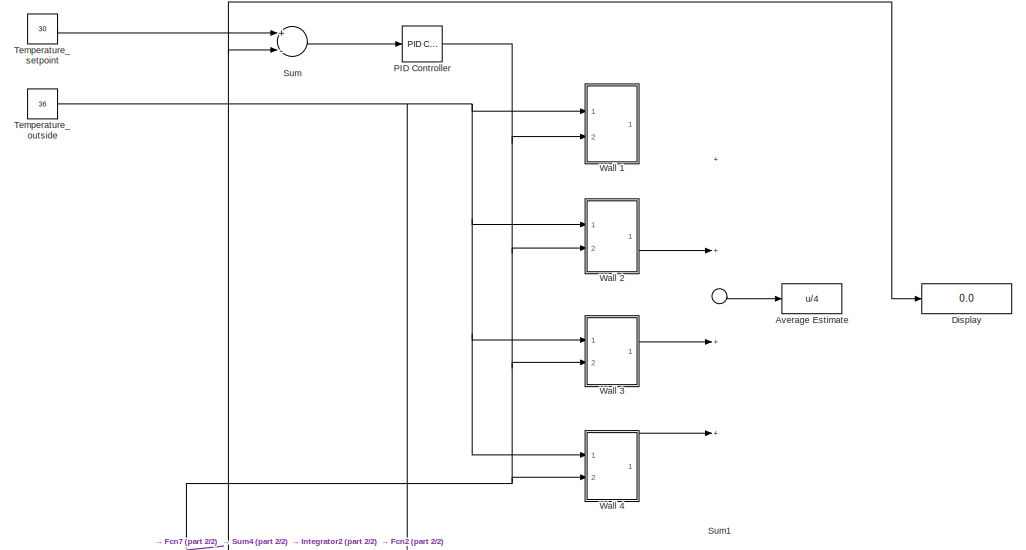
[diagram: root canvas - part 1/2, full width, top band]
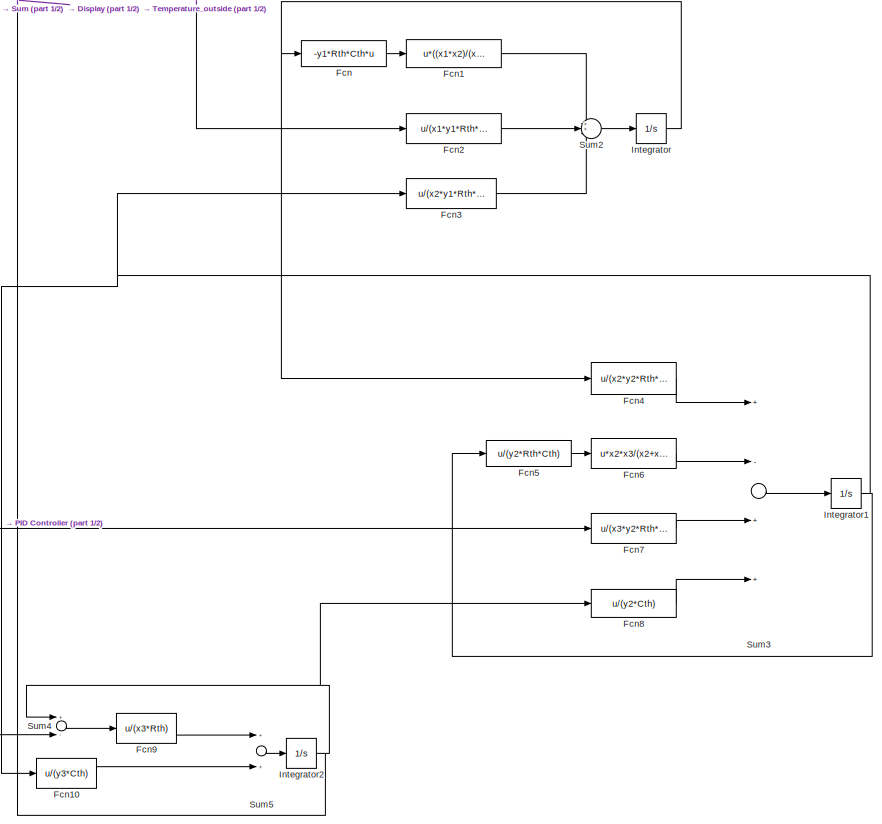
[diagram: root canvas - part 2/2, full width, bottom band]
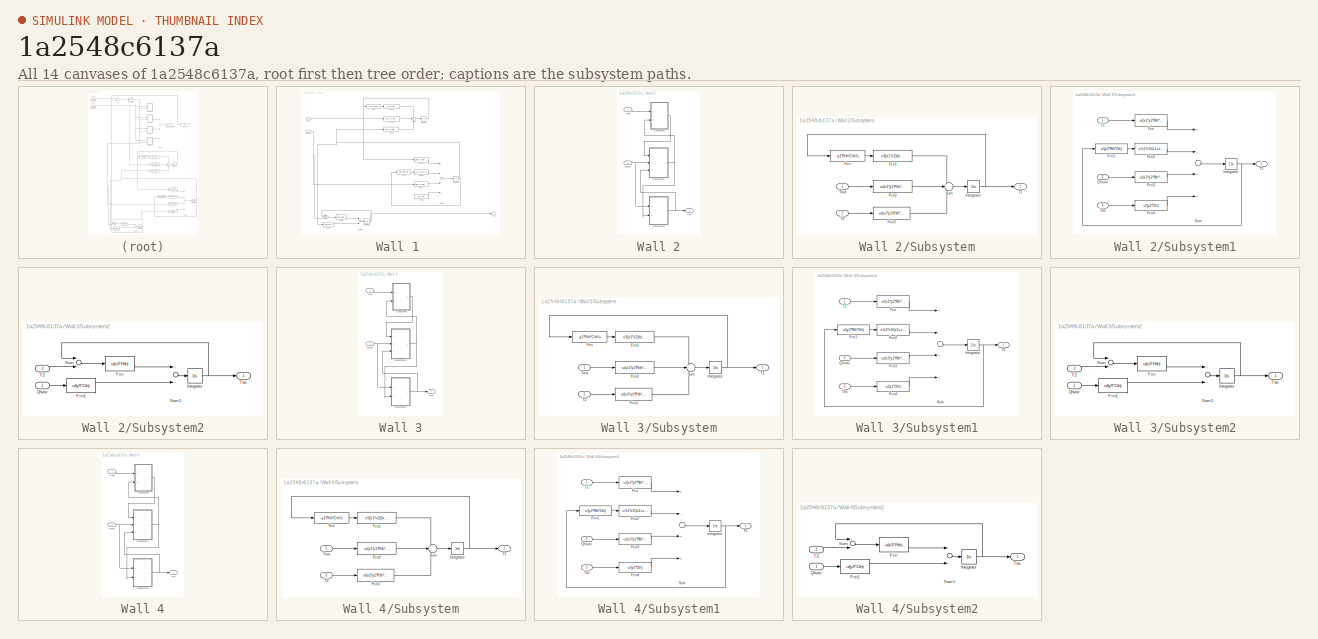
[diagram: thumbnail index - all 14 canvases of the model, root first then tree order]
MODEL slx_1a2548c6137a
KIND model
CONFIG AbsTol = auto
CONFIG FixedStep = auto
CONFIG InitFcn = server = Sim_server(10000);
CONFIG MaxStep = auto
CONFIG MinStep = auto
CONFIG RelTol = 1e-3
CONFIG SampleTimeConstraint = Unconstrained
CONFIG Solver = ode45
CONFIG SolverMode = Auto
CONFIG SolverName = ode45
CONFIG StartTime = 0.0
CONFIG StopFcn = server.stop
CONFIG StopTime = Inf
BLOCK [Fcn] Average Estimate
  Commented = on
  Expr = u/4
BLOCK [Display] Display
  Decimation = 1
  Ports = [1]
BLOCK [Fcn] Fcn
  Expr = -y1*Rth*Cth*u
BLOCK [Fcn] Fcn1
  Expr = u*((x1*x2)/(x1+x2))
BLOCK [Fcn] Fcn10
  Expr = u/(y3*Cth)
BLOCK [Fcn] Fcn2
  Expr = u/(x1*y1*Rth*Cth)
BLOCK [Fcn] Fcn3
  Expr = u/(x2*y1*Rth*Cth)
BLOCK [Fcn] Fcn4
  Expr = u/(x2*y2*Rth*Cth)
BLOCK [Fcn] Fcn5
  Expr = u/(y2*Rth*Cth)
BLOCK [Fcn] Fcn6
  Expr = u*x2*x3/(x2+x3)
BLOCK [Fcn] Fcn7
  Expr = u/(x3*y2*Rth*Cth)
BLOCK [Fcn] Fcn8
  Expr = u/(y2*Cth)
BLOCK [Fcn] Fcn9
  Expr = u/(x3*Rth)
BLOCK [Integrator] Integrator
  Ports = [1, 1]
BLOCK [Integrator] Integrator1
  Ports = [1, 1]
BLOCK [Integrator] Integrator2
  Ports = [1, 1]
BLOCK [Reference] PID Controller  REF=simulink/Continuous/PID Controller
  AntiWindupMode = none
  Controller = PID
  ControllerParametersSource = internal
  D = -0.161133654003053
  DGainOutDataTypeStr = Inherit: Inherit via internal rule
  DOutDataTypeStr = Inherit: Inherit via internal rule
  DOutMax = []
  DOutMin = []
  DParamDataTypeStr = Inherit: Inherit via internal rule
  DParamMax = []
  DParamMin = []
  DProdOutDataTypeStr = Inherit: Inherit via internal rule
  DifferentiatorICPrevScaledInput = 0
  DifferentiatorOutDataTypeStr = Inherit: Inherit via internal rule
  DifferentiatorOutMax = []
  DifferentiatorOutMin = []
  ExternalReset = none
  FilterContinuousStateAttributes = ''
  FilterMethod = Forward Euler
  FilterOutDataTypeStr = Inherit: Inherit via internal rule
  FilterOutMax = []
  FilterOutMin = []
  FilterRTWStateStorageClass = Auto
  FilterStateMustResolveToSignalObject = off
  Form = Parallel
  I = -345.034799736216
  IGainOutDataTypeStr = Inherit: Inherit via internal rule
  IOutDataTypeStr = Inherit: Inherit via internal rule
  IOutMax = []
  IOutMin = []
  IParamDataTypeStr = Inherit: Inherit via internal rule
  IParamMax = []
  IParamMin = []
  IProdOutDataTypeStr = Inherit: Inherit via internal rule
  IgnoreLimit = off
  InitialConditionForFilter = 0
  InitialConditionForIntegrator = 0
  InitialConditionSource = internal
  IntegratorContinuousStateAttributes = ''
  IntegratorMethod = Forward Euler
  IntegratorOutDataTypeStr = Inherit: Inherit via internal rule
  IntegratorOutMax = []
  IntegratorOutMin = []
  IntegratorRTWStateStorageClass = Auto
  IntegratorStateMustResolveToSignalObject = off
  Kb = 1
  KbOutDataTypeStr = Inherit: Inherit via internal rule
  KbOutMax = []
  KbOutMin = []
  KbParamDataTypeStr = Inherit: Inherit via internal rule
  KbParamMax = []
  KbParamMin = []
  Kt = 1
  KtOutDataTypeStr = Inherit: Inherit via internal rule
  KtOutMax = []
  KtOutMin = []
  KtParamDataTypeStr = Inherit: Inherit via internal rule
  KtParamMax = []
  KtParamMin = []
  LimitOutput = off
  LinearizeAsGain = on
  LockScale = off
  LowerSaturationLimit = -inf
  N = 216.924955724861
  NGainOutDataTypeStr = Inherit: Inherit via internal rule
  NOutDataTypeStr = Inherit: Inherit via internal rule
  NOutMax = []
  NOutMin = []
  NParamDataTypeStr = Inherit: Inherit via internal rule
  NParamMax = []
  NParamMin = []
  NProdOutDataTypeStr = Inherit: Inherit via internal rule
  P = -48.5287946828106
  PGainOutDataTypeStr = Inherit: Inherit via internal rule
  POutDataTypeStr = Inherit: Inherit via internal rule
  POutMax = []
  POutMin = []
  PParamDataTypeStr = Inherit: Inherit via internal rule
  PParamMax = []
  PParamMin = []
  PProdOutDataTypeStr = Inherit: Inherit via internal rule
  Ports = [1, 1]
  RndMeth = Floor
  SampleTime = -1
  SaturateOnIntegerOverflow = off
  SaturationOutDataTypeStr = Inherit: Same as input
  SaturationOutMax = []
  SaturationOutMin = []
  SourceBlock = simulink/Continuous/PID Controller
  SourceType = PID 1dof
  SumAccumDataTypeStr = Inherit: Inherit via internal rule
  SumDAccumDataTypeStr = Inherit: Inherit via internal rule
  SumDOutDataTypeStr = Inherit: Inherit via internal rule
  SumDOutMax = []
  SumDOutMin = []
  SumI1AccumDataTypeStr = Inherit: Inherit via internal rule
  SumI1OutDataTypeStr = Inherit: Inherit via internal rule
  SumI1OutMax = []
  SumI1OutMin = []
  SumI2AccumDataTypeStr = Inherit: Inherit via internal rule
  SumI2OutDataTypeStr = Inherit: Inherit via internal rule
  SumI2OutMax = []
  SumI2OutMin = []
  SumI3AccumDataTypeStr = Inherit: Inherit via internal rule
  SumI3OutDataTypeStr = Inherit: Inherit via internal rule
  SumI3OutMax = []
  SumI3OutMin = []
  SumOutDataTypeStr = Inherit: Inherit via internal rule
  SumOutMax = []
  SumOutMin = []
  TimeDomain = Continuous-time
  TrackingMode = off
  UpperSaturationLimit = inf
  UseFilter = on
  ZeroCross = on
BLOCK [Sum] Sum
  InputSameDT = off
  Inputs = +-
  OutDataTypeStr = Inherit: Inherit via internal rule
  Ports = [2, 1]
  SaturateOnIntegerOverflow = off
BLOCK [Sum] Sum1
  Commented = on
  InputSameDT = off
  Inputs = ++++
  OutDataTypeStr = Inherit: Inherit via internal rule
  Ports = [4, 1]
  SaturateOnIntegerOverflow = off
BLOCK [Sum] Sum2
  IconShape = round
  InputSameDT = off
  Inputs = 3
  OutDataTypeStr = Inherit: Inherit via internal rule
  Ports = [3, 1]
  SaturateOnIntegerOverflow = off
BLOCK [Sum] Sum3
  InputSameDT = off
  Inputs = +-++
  OutDataTypeStr = Inherit: Inherit via internal rule
  Ports = [4, 1]
  RndMeth = Round
  SaturateOnIntegerOverflow = off
BLOCK [Sum] Sum4
  InputSameDT = off
  Inputs = +-
  OutDataTypeStr = Inherit: Inherit via internal rule
  Ports = [2, 1]
  SaturateOnIntegerOverflow = off
BLOCK [Sum] Sum5
  InputSameDT = off
  OutDataTypeStr = Inherit: Inherit via internal rule
  Ports = [2, 1]
  SaturateOnIntegerOverflow = off
BLOCK [Constant] Temperature_outside
  Value = 36
BLOCK [Constant] Temperature_setpoint
  OutMax = [30]
  OutMin = [16]
  Value = 30
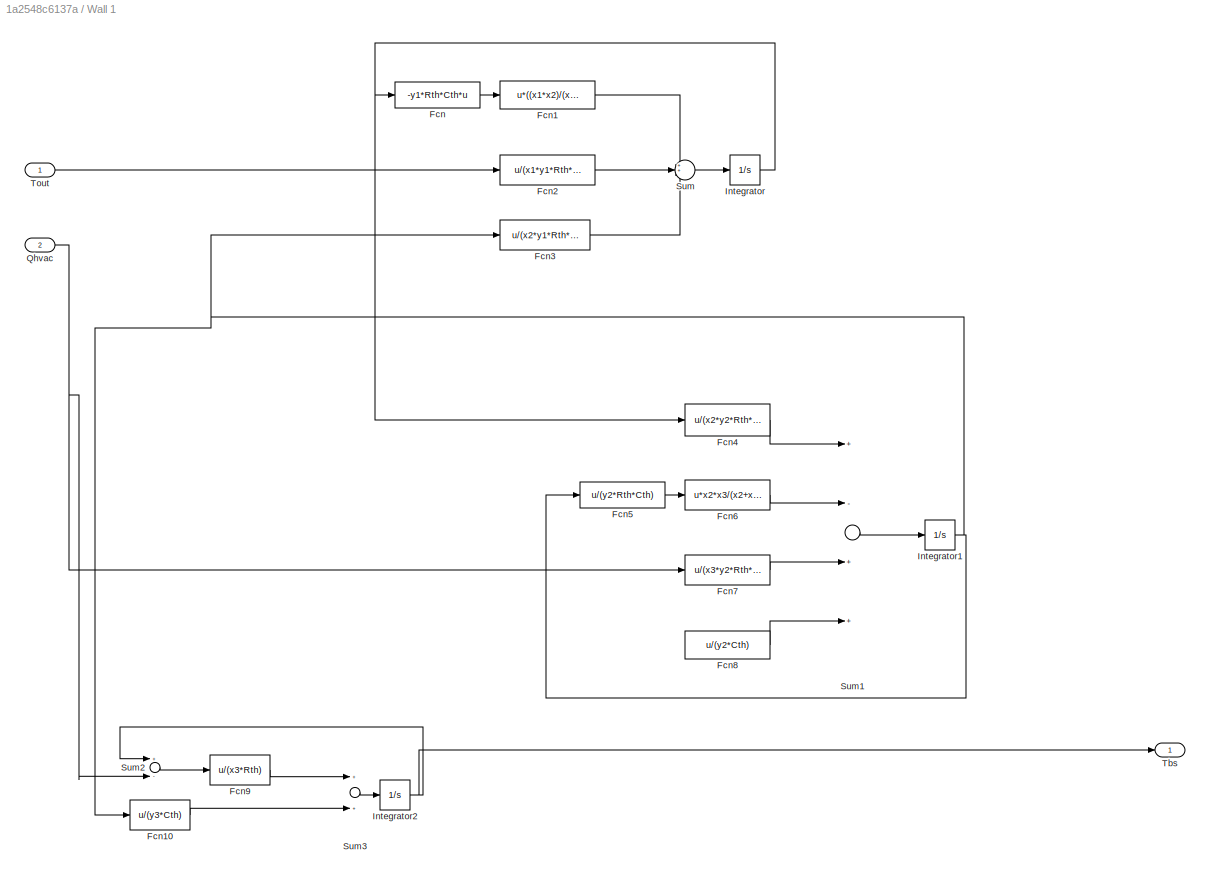
BLOCK [SubSystem] Wall 1 
  Commented = on
  Ports = [2, 1]
  RequestExecContextInheritance = off
  Variant = off
BLOCK [Fcn] Wall 1 /Fcn
  Expr = -y1*Rth*Cth*u
BLOCK [Fcn] Wall 1 /Fcn1
  Expr = u*((x1*x2)/(x1+x2))
BLOCK [Fcn] Wall 1 /Fcn10
  Expr = u/(y3*Cth)
BLOCK [Fcn] Wall 1 /Fcn2
  Expr = u/(x1*y1*Rth*Cth)
BLOCK [Fcn] Wall 1 /Fcn3
  Expr = u/(x2*y1*Rth*Cth)
BLOCK [Fcn] Wall 1 /Fcn4
  Expr = u/(x2*y2*Rth*Cth)
BLOCK [Fcn] Wall 1 /Fcn5
  Expr = u/(y2*Rth*Cth)
BLOCK [Fcn] Wall 1 /Fcn6
  Expr = u*x2*x3/(x2+x3)
BLOCK [Fcn] Wall 1 /Fcn7
  Expr = u/(x3*y2*Rth*Cth)
BLOCK [Fcn] Wall 1 /Fcn8
  Expr = u/(y2*Cth)
BLOCK [Fcn] Wall 1 /Fcn9
  Expr = u/(x3*Rth)
BLOCK [Integrator] Wall 1 /Integrator
  Ports = [1, 1]
BLOCK [Integrator] Wall 1 /Integrator1
  Ports = [1, 1]
BLOCK [Integrator] Wall 1 /Integrator2
  Ports = [1, 1]
BLOCK [Inport] Wall 1 /Qhvac
  IconDisplay = Port number
  Port = 2
BLOCK [Sum] Wall 1 /Sum
  IconShape = round
  InputSameDT = off
  Inputs = 3
  OutDataTypeStr = Inherit: Inherit via internal rule
  Ports = [3, 1]
  SaturateOnIntegerOverflow = off
BLOCK [Sum] Wall 1 /Sum1
  InputSameDT = off
  Inputs = +-++
  OutDataTypeStr = Inherit: Inherit via internal rule
  Ports = [4, 1]
  RndMeth = Round
  SaturateOnIntegerOverflow = off
BLOCK [Sum] Wall 1 /Sum2
  InputSameDT = off
  Inputs = +-
  OutDataTypeStr = Inherit: Inherit via internal rule
  Ports = [2, 1]
  SaturateOnIntegerOverflow = off
BLOCK [Sum] Wall 1 /Sum3
  InputSameDT = off
  OutDataTypeStr = Inherit: Inherit via internal rule
  Ports = [2, 1]
  SaturateOnIntegerOverflow = off
BLOCK [Outport] Wall 1 /Tbs 
  IconDisplay = Port number
BLOCK [Inport] Wall 1 /Tout
  IconDisplay = Port number
BLOCK [SubSystem] Wall 2
  Commented = on
  Ports = [2, 1]
  RequestExecContextInheritance = off
  Variant = off
BLOCK [Inport] Wall 2/Qhvac
  IconDisplay = Port number
  Port = 2
BLOCK [SubSystem] Wall 2/Subsystem
  Ports = [2, 1]
  RequestExecContextInheritance = off
  Variant = off
BLOCK [Fcn] Wall 2/Subsystem/Fcn
  Expr = -y1*Rth*Cth*u
BLOCK [Fcn] Wall 2/Subsystem/Fcn1
  Expr = u*((x1*x2)/(x1+x2))
BLOCK [Fcn] Wall 2/Subsystem/Fcn2
  Expr = u/(x1*y1*Rth*Cth)
BLOCK [Fcn] Wall 2/Subsystem/Fcn3
  Expr = u/(x2*y1*Rth*Cth)
BLOCK [Integrator] Wall 2/Subsystem/Integrator
  Ports = [1, 1]
BLOCK [Sum] Wall 2/Subsystem/Sum
  IconShape = round
  InputSameDT = off
  Inputs = 3
  OutDataTypeStr = Inherit: Inherit via internal rule
  Ports = [3, 1]
  SaturateOnIntegerOverflow = off
BLOCK [Outport] Wall 2/Subsystem/T1
  IconDisplay = Port number
BLOCK [Inport] Wall 2/Subsystem/T2
  IconDisplay = Port number
  Port = 2
BLOCK [Inport] Wall 2/Subsystem/Tout
  IconDisplay = Port number
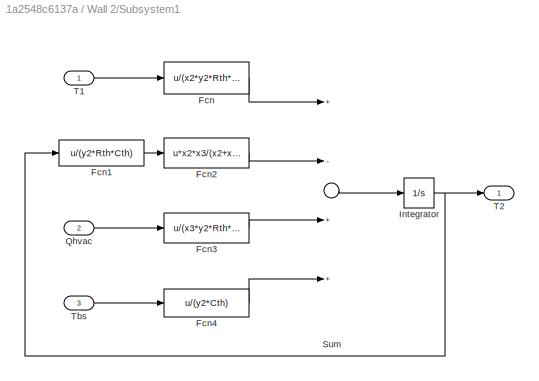
BLOCK [SubSystem] Wall 2/Subsystem1
  Ports = [3, 1]
  RequestExecContextInheritance = off
  Variant = off
BLOCK [Fcn] Wall 2/Subsystem1/Fcn
  Expr = u/(x2*y2*Rth*Cth)
BLOCK [Fcn] Wall 2/Subsystem1/Fcn1
  Expr = u/(y2*Rth*Cth)
BLOCK [Fcn] Wall 2/Subsystem1/Fcn2
  Expr = u*x2*x3/(x2+x3)
BLOCK [Fcn] Wall 2/Subsystem1/Fcn3
  Expr = u/(x3*y2*Rth*Cth)
BLOCK [Fcn] Wall 2/Subsystem1/Fcn4
  Expr = u/(y2*Cth)
BLOCK [Integrator] Wall 2/Subsystem1/Integrator
  Ports = [1, 1]
BLOCK [Inport] Wall 2/Subsystem1/Qhvac
  IconDisplay = Port number
  Port = 2
BLOCK [Sum] Wall 2/Subsystem1/Sum
  InputSameDT = off
  Inputs = +-++
  OutDataTypeStr = Inherit: Inherit via internal rule
  Ports = [4, 1]
  RndMeth = Round
  SaturateOnIntegerOverflow = off
BLOCK [Inport] Wall 2/Subsystem1/T1 
  IconDisplay = Port number
BLOCK [Outport] Wall 2/Subsystem1/T2 
  IconDisplay = Port number
BLOCK [Inport] Wall 2/Subsystem1/Tbs
  IconDisplay = Port number
  Port = 3
BLOCK [SubSystem] Wall 2/Subsystem2
  Ports = [2, 1]
  RequestExecContextInheritance = off
  Variant = off
BLOCK [Fcn] Wall 2/Subsystem2/Fcn
  Expr = u/(x3*Rth)
BLOCK [Fcn] Wall 2/Subsystem2/Fcn1
  Expr = u/(y3*Cth)
BLOCK [Integrator] Wall 2/Subsystem2/Integrator
  Ports = [1, 1]
BLOCK [Inport] Wall 2/Subsystem2/Qhvac 
  IconDisplay = Port number
BLOCK [Sum] Wall 2/Subsystem2/Sum
  InputSameDT = off
  Inputs = +-
  OutDataTypeStr = Inherit: Inherit via internal rule
  Ports = [2, 1]
  SaturateOnIntegerOverflow = off
BLOCK [Sum] Wall 2/Subsystem2/Sum1
  InputSameDT = off
  OutDataTypeStr = Inherit: Inherit via internal rule
  Ports = [2, 1]
  SaturateOnIntegerOverflow = off
BLOCK [Inport] Wall 2/Subsystem2/T2 
  IconDisplay = Port number
  Port = 2
BLOCK [Outport] Wall 2/Subsystem2/Tbs 
  IconDisplay = Port number
BLOCK [Outport] Wall 2/Tbs 
  IconDisplay = Port number
BLOCK [Inport] Wall 2/Tout
  IconDisplay = Port number
BLOCK [SubSystem] Wall 3
  Commented = on
  Ports = [2, 1]
  RequestExecContextInheritance = off
  Variant = off
BLOCK [Inport] Wall 3/Qhvac
  IconDisplay = Port number
  Port = 2
BLOCK [SubSystem] Wall 3/Subsystem
  Ports = [2, 1]
  RequestExecContextInheritance = off
  Variant = off
BLOCK [Fcn] Wall 3/Subsystem/Fcn
  Expr = -y1*Rth*Cth*u
BLOCK [Fcn] Wall 3/Subsystem/Fcn1
  Expr = u*((x1*x2)/(x1+x2))
BLOCK [Fcn] Wall 3/Subsystem/Fcn2
  Expr = u/(x1*y1*Rth*Cth)
BLOCK [Fcn] Wall 3/Subsystem/Fcn3
  Expr = u/(x2*y1*Rth*Cth)
BLOCK [Integrator] Wall 3/Subsystem/Integrator
  Ports = [1, 1]
BLOCK [Sum] Wall 3/Subsystem/Sum
  IconShape = round
  InputSameDT = off
  Inputs = 3
  OutDataTypeStr = Inherit: Inherit via internal rule
  Ports = [3, 1]
  SaturateOnIntegerOverflow = off
BLOCK [Outport] Wall 3/Subsystem/T1
  IconDisplay = Port number
BLOCK [Inport] Wall 3/Subsystem/T2
  IconDisplay = Port number
  Port = 2
BLOCK [Inport] Wall 3/Subsystem/Tout
  IconDisplay = Port number
BLOCK [SubSystem] Wall 3/Subsystem1
  Ports = [3, 1]
  RequestExecContextInheritance = off
  Variant = off
BLOCK [Fcn] Wall 3/Subsystem1/Fcn
  Expr = u/(x2*y2*Rth*Cth)
BLOCK [Fcn] Wall 3/Subsystem1/Fcn1
  Expr = u/(y2*Rth*Cth)
BLOCK [Fcn] Wall 3/Subsystem1/Fcn2
  Expr = u*x2*x3/(x2+x3)
BLOCK [Fcn] Wall 3/Subsystem1/Fcn3
  Expr = u/(x3*y2*Rth*Cth)
BLOCK [Fcn] Wall 3/Subsystem1/Fcn4
  Expr = u/(y2*Cth)
BLOCK [Integrator] Wall 3/Subsystem1/Integrator
  Ports = [1, 1]
BLOCK [Inport] Wall 3/Subsystem1/Qhvac
  IconDisplay = Port number
  Port = 2
BLOCK [Sum] Wall 3/Subsystem1/Sum
  InputSameDT = off
  Inputs = +-++
  OutDataTypeStr = Inherit: Inherit via internal rule
  Ports = [4, 1]
  RndMeth = Round
  SaturateOnIntegerOverflow = off
BLOCK [Inport] Wall 3/Subsystem1/T1 
  IconDisplay = Port number
BLOCK [Outport] Wall 3/Subsystem1/T2 
  IconDisplay = Port number
BLOCK [Inport] Wall 3/Subsystem1/Tbs
  IconDisplay = Port number
  Port = 3
BLOCK [SubSystem] Wall 3/Subsystem2
  Ports = [2, 1]
  RequestExecContextInheritance = off
  Variant = off
BLOCK [Fcn] Wall 3/Subsystem2/Fcn
  Expr = u/(x3*Rth)
BLOCK [Fcn] Wall 3/Subsystem2/Fcn1
  Expr = u/(y3*Cth)
BLOCK [Integrator] Wall 3/Subsystem2/Integrator
  Ports = [1, 1]
BLOCK [Inport] Wall 3/Subsystem2/Qhvac 
  IconDisplay = Port number
BLOCK [Sum] Wall 3/Subsystem2/Sum
  InputSameDT = off
  Inputs = +-
  OutDataTypeStr = Inherit: Inherit via internal rule
  Ports = [2, 1]
  SaturateOnIntegerOverflow = off
BLOCK [Sum] Wall 3/Subsystem2/Sum1
  InputSameDT = off
  OutDataTypeStr = Inherit: Inherit via internal rule
  Ports = [2, 1]
  SaturateOnIntegerOverflow = off
BLOCK [Inport] Wall 3/Subsystem2/T2 
  IconDisplay = Port number
  Port = 2
BLOCK [Outport] Wall 3/Subsystem2/Tbs 
  IconDisplay = Port number
BLOCK [Outport] Wall 3/Tbs 
  IconDisplay = Port number
BLOCK [Inport] Wall 3/Tout
  IconDisplay = Port number
BLOCK [SubSystem] Wall 4
  Commented = on
  Ports = [2, 1]
  RequestExecContextInheritance = off
  Variant = off
BLOCK [Inport] Wall 4/Qhvac
  IconDisplay = Port number
  Port = 2
BLOCK [SubSystem] Wall 4/Subsystem
  Ports = [2, 1]
  RequestExecContextInheritance = off
  Variant = off
BLOCK [Fcn] Wall 4/Subsystem/Fcn
  Expr = -y1*Rth*Cth*u
BLOCK [Fcn] Wall 4/Subsystem/Fcn1
  Expr = u*((x1*x2)/(x1+x2))
BLOCK [Fcn] Wall 4/Subsystem/Fcn2
  Expr = u/(x1*y1*Rth*Cth)
BLOCK [Fcn] Wall 4/Subsystem/Fcn3
  Expr = u/(x2*y1*Rth*Cth)
BLOCK [Integrator] Wall 4/Subsystem/Integrator
  Ports = [1, 1]
BLOCK [Sum] Wall 4/Subsystem/Sum
  IconShape = round
  InputSameDT = off
  Inputs = 3
  OutDataTypeStr = Inherit: Inherit via internal rule
  Ports = [3, 1]
  SaturateOnIntegerOverflow = off
BLOCK [Outport] Wall 4/Subsystem/T1
  IconDisplay = Port number
BLOCK [Inport] Wall 4/Subsystem/T2
  IconDisplay = Port number
  Port = 2
BLOCK [Inport] Wall 4/Subsystem/Tout
  IconDisplay = Port number
BLOCK [SubSystem] Wall 4/Subsystem1
  Ports = [3, 1]
  RequestExecContextInheritance = off
  Variant = off
BLOCK [Fcn] Wall 4/Subsystem1/Fcn
  Expr = u/(x2*y2*Rth*Cth)
BLOCK [Fcn] Wall 4/Subsystem1/Fcn1
  Expr = u/(y2*Rth*Cth)
BLOCK [Fcn] Wall 4/Subsystem1/Fcn2
  Expr = u*x2*x3/(x2+x3)
BLOCK [Fcn] Wall 4/Subsystem1/Fcn3
  Expr = u/(x3*y2*Rth*Cth)
BLOCK [Fcn] Wall 4/Subsystem1/Fcn4
  Expr = u/(y2*Cth)
BLOCK [Integrator] Wall 4/Subsystem1/Integrator
  Ports = [1, 1]
BLOCK [Inport] Wall 4/Subsystem1/Qhvac
  IconDisplay = Port number
  Port = 2
BLOCK [Sum] Wall 4/Subsystem1/Sum
  InputSameDT = off
  Inputs = +-++
  OutDataTypeStr = Inherit: Inherit via internal rule
  Ports = [4, 1]
  RndMeth = Round
  SaturateOnIntegerOverflow = off
BLOCK [Inport] Wall 4/Subsystem1/T1 
  IconDisplay = Port number
BLOCK [Outport] Wall 4/Subsystem1/T2 
  IconDisplay = Port number
BLOCK [Inport] Wall 4/Subsystem1/Tbs
  IconDisplay = Port number
  Port = 3
BLOCK [SubSystem] Wall 4/Subsystem2
  Ports = [2, 1]
  RequestExecContextInheritance = off
  Variant = off
BLOCK [Fcn] Wall 4/Subsystem2/Fcn
  Expr = u/(x3*Rth)
BLOCK [Fcn] Wall 4/Subsystem2/Fcn1
  Expr = u/(y3*Cth)
BLOCK [Integrator] Wall 4/Subsystem2/Integrator
  Ports = [1, 1]
BLOCK [Inport] Wall 4/Subsystem2/Qhvac 
  IconDisplay = Port number
BLOCK [Sum] Wall 4/Subsystem2/Sum
  InputSameDT = off
  Inputs = +-
  OutDataTypeStr = Inherit: Inherit via internal rule
  Ports = [2, 1]
  SaturateOnIntegerOverflow = off
BLOCK [Sum] Wall 4/Subsystem2/Sum1
  InputSameDT = off
  OutDataTypeStr = Inherit: Inherit via internal rule
  Ports = [2, 1]
  SaturateOnIntegerOverflow = off
BLOCK [Inport] Wall 4/Subsystem2/T2 
  IconDisplay = Port number
  Port = 2
BLOCK [Outport] Wall 4/Subsystem2/Tbs 
  IconDisplay = Port number
BLOCK [Outport] Wall 4/Tbs 
  IconDisplay = Port number
BLOCK [Inport] Wall 4/Tout
  IconDisplay = Port number
LINE Fcn10:1 -> Sum5:2
LINE Fcn1:1 -> Sum2:1
LINE Fcn2:1 -> Sum2:2
LINE Fcn3:1 -> Sum2:3
LINE Fcn4:1 -> Sum3:1
LINE Fcn5:1 -> Fcn6:1
LINE Fcn6:1 -> Sum3:2
LINE Fcn7:1 -> Sum3:3
LINE Fcn8:1 -> Sum3:4
LINE Fcn9:1 -> Sum5:1
LINE Fcn:1 -> Fcn1:1
NET Integrator1:1 -> Fcn10:1, Fcn3:1, Fcn5:1
NET Integrator2:1 -> Display:1, Fcn8:1, Sum4:1, Sum:2
NET Integrator:1 -> Fcn4:1, Fcn:1
NET PID Controller:1 -> Fcn7:1, Sum4:2, Wall 1 :2, Wall 2:2, Wall 3:2, Wall 4:2
LINE Sum1:1 -> Average Estimate:1
LINE Sum2:1 -> Integrator:1
LINE Sum3:1 -> Integrator1:1
LINE Sum4:1 -> Fcn9:1
LINE Sum5:1 -> Integrator2:1
LINE Sum:1 -> PID Controller:1
NET Temperature_outside:1 -> Fcn2:1, Wall 1 :1, Wall 2:1, Wall 3:1, Wall 4:1
LINE Temperature_setpoint:1 -> Sum:1
LINE Wall 1 /Fcn10:1 -> Wall 1 /Sum3:2
LINE Wall 1 /Fcn1:1 -> Wall 1 /Sum:1
LINE Wall 1 /Fcn2:1 -> Wall 1 /Sum:2
LINE Wall 1 /Fcn3:1 -> Wall 1 /Sum:3
LINE Wall 1 /Fcn4:1 -> Wall 1 /Sum1:1
LINE Wall 1 /Fcn5:1 -> Wall 1 /Fcn6:1
LINE Wall 1 /Fcn6:1 -> Wall 1 /Sum1:2
LINE Wall 1 /Fcn7:1 -> Wall 1 /Sum1:3
LINE Wall 1 /Fcn8:1 -> Wall 1 /Sum1:4
LINE Wall 1 /Fcn9:1 -> Wall 1 /Sum3:1
LINE Wall 1 /Fcn:1 -> Wall 1 /Fcn1:1
NET Wall 1 /Integrator1:1 -> Wall 1 /Fcn10:1, Wall 1 /Fcn3:1, Wall 1 /Fcn5:1
NET Wall 1 /Integrator2:1 -> Wall 1 /Sum2:1, Wall 1 /Tbs :1
NET Wall 1 /Integrator:1 -> Wall 1 /Fcn4:1, Wall 1 /Fcn:1
NET Wall 1 /Qhvac:1 -> Wall 1 /Fcn7:1, Wall 1 /Sum2:2
LINE Wall 1 /Sum1:1 -> Wall 1 /Integrator1:1
LINE Wall 1 /Sum2:1 -> Wall 1 /Fcn9:1
LINE Wall 1 /Sum3:1 -> Wall 1 /Integrator2:1
LINE Wall 1 /Sum:1 -> Wall 1 /Integrator:1
LINE Wall 1 /Tout:1 -> Wall 1 /Fcn2:1
NET Wall 2/Qhvac:1 -> Wall 2/Subsystem1:2, Wall 2/Subsystem2:1
LINE Wall 2/Subsystem/Fcn1:1 -> Wall 2/Subsystem/Sum:1
LINE Wall 2/Subsystem/Fcn2:1 -> Wall 2/Subsystem/Sum:2
LINE Wall 2/Subsystem/Fcn3:1 -> Wall 2/Subsystem/Sum:3
LINE Wall 2/Subsystem/Fcn:1 -> Wall 2/Subsystem/Fcn1:1
NET Wall 2/Subsystem/Integrator:1 -> Wall 2/Subsystem/Fcn:1, Wall 2/Subsystem/T1:1
LINE Wall 2/Subsystem/Sum:1 -> Wall 2/Subsystem/Integrator:1
LINE Wall 2/Subsystem/T2:1 -> Wall 2/Subsystem/Fcn3:1
LINE Wall 2/Subsystem/Tout:1 -> Wall 2/Subsystem/Fcn2:1
LINE Wall 2/Subsystem1/Fcn1:1 -> Wall 2/Subsystem1/Fcn2:1
LINE Wall 2/Subsystem1/Fcn2:1 -> Wall 2/Subsystem1/Sum:2
LINE Wall 2/Subsystem1/Fcn3:1 -> Wall 2/Subsystem1/Sum:3
LINE Wall 2/Subsystem1/Fcn4:1 -> Wall 2/Subsystem1/Sum:4
LINE Wall 2/Subsystem1/Fcn:1 -> Wall 2/Subsystem1/Sum:1
NET Wall 2/Subsystem1/Integrator:1 -> Wall 2/Subsystem1/Fcn1:1, Wall 2/Subsystem1/T2 :1
LINE Wall 2/Subsystem1/Qhvac:1 -> Wall 2/Subsystem1/Fcn3:1
LINE Wall 2/Subsystem1/Sum:1 -> Wall 2/Subsystem1/Integrator:1
LINE Wall 2/Subsystem1/T1 :1 -> Wall 2/Subsystem1/Fcn:1
LINE Wall 2/Subsystem1/Tbs:1 -> Wall 2/Subsystem1/Fcn4:1
NET Wall 2/Subsystem1:1 -> Wall 2/Subsystem2:2, Wall 2/Subsystem:2
LINE Wall 2/Subsystem2/Fcn1:1 -> Wall 2/Subsystem2/Sum1:2
LINE Wall 2/Subsystem2/Fcn:1 -> Wall 2/Subsystem2/Sum1:1
NET Wall 2/Subsystem2/Integrator:1 -> Wall 2/Subsystem2/Sum:1, Wall 2/Subsystem2/Tbs :1
LINE Wall 2/Subsystem2/Qhvac :1 -> Wall 2/Subsystem2/Fcn1:1
LINE Wall 2/Subsystem2/Sum1:1 -> Wall 2/Subsystem2/Integrator:1
LINE Wall 2/Subsystem2/Sum:1 -> Wall 2/Subsystem2/Fcn:1
LINE Wall 2/Subsystem2/T2 :1 -> Wall 2/Subsystem2/Sum:2
NET Wall 2/Subsystem2:1 -> Wall 2/Subsystem1:3, Wall 2/Tbs :1
LINE Wall 2/Subsystem:1 -> Wall 2/Subsystem1:1
LINE Wall 2/Tout:1 -> Wall 2/Subsystem:1
LINE Wall 2:1 -> Sum1:2
NET Wall 3/Qhvac:1 -> Wall 3/Subsystem1:2, Wall 3/Subsystem2:1
LINE Wall 3/Subsystem/Fcn1:1 -> Wall 3/Subsystem/Sum:1
LINE Wall 3/Subsystem/Fcn2:1 -> Wall 3/Subsystem/Sum:2
LINE Wall 3/Subsystem/Fcn3:1 -> Wall 3/Subsystem/Sum:3
LINE Wall 3/Subsystem/Fcn:1 -> Wall 3/Subsystem/Fcn1:1
NET Wall 3/Subsystem/Integrator:1 -> Wall 3/Subsystem/Fcn:1, Wall 3/Subsystem/T1:1
LINE Wall 3/Subsystem/Sum:1 -> Wall 3/Subsystem/Integrator:1
LINE Wall 3/Subsystem/T2:1 -> Wall 3/Subsystem/Fcn3:1
LINE Wall 3/Subsystem/Tout:1 -> Wall 3/Subsystem/Fcn2:1
LINE Wall 3/Subsystem1/Fcn1:1 -> Wall 3/Subsystem1/Fcn2:1
LINE Wall 3/Subsystem1/Fcn2:1 -> Wall 3/Subsystem1/Sum:2
LINE Wall 3/Subsystem1/Fcn3:1 -> Wall 3/Subsystem1/Sum:3
LINE Wall 3/Subsystem1/Fcn4:1 -> Wall 3/Subsystem1/Sum:4
LINE Wall 3/Subsystem1/Fcn:1 -> Wall 3/Subsystem1/Sum:1
NET Wall 3/Subsystem1/Integrator:1 -> Wall 3/Subsystem1/Fcn1:1, Wall 3/Subsystem1/T2 :1
LINE Wall 3/Subsystem1/Qhvac:1 -> Wall 3/Subsystem1/Fcn3:1
LINE Wall 3/Subsystem1/Sum:1 -> Wall 3/Subsystem1/Integrator:1
LINE Wall 3/Subsystem1/T1 :1 -> Wall 3/Subsystem1/Fcn:1
LINE Wall 3/Subsystem1/Tbs:1 -> Wall 3/Subsystem1/Fcn4:1
NET Wall 3/Subsystem1:1 -> Wall 3/Subsystem2:2, Wall 3/Subsystem:2
LINE Wall 3/Subsystem2/Fcn1:1 -> Wall 3/Subsystem2/Sum1:2
LINE Wall 3/Subsystem2/Fcn:1 -> Wall 3/Subsystem2/Sum1:1
NET Wall 3/Subsystem2/Integrator:1 -> Wall 3/Subsystem2/Sum:1, Wall 3/Subsystem2/Tbs :1
LINE Wall 3/Subsystem2/Qhvac :1 -> Wall 3/Subsystem2/Fcn1:1
LINE Wall 3/Subsystem2/Sum1:1 -> Wall 3/Subsystem2/Integrator:1
LINE Wall 3/Subsystem2/Sum:1 -> Wall 3/Subsystem2/Fcn:1
LINE Wall 3/Subsystem2/T2 :1 -> Wall 3/Subsystem2/Sum:2
NET Wall 3/Subsystem2:1 -> Wall 3/Subsystem1:3, Wall 3/Tbs :1
LINE Wall 3/Subsystem:1 -> Wall 3/Subsystem1:1
LINE Wall 3/Tout:1 -> Wall 3/Subsystem:1
LINE Wall 3:1 -> Sum1:3
NET Wall 4/Qhvac:1 -> Wall 4/Subsystem1:2, Wall 4/Subsystem2:1
LINE Wall 4/Subsystem/Fcn1:1 -> Wall 4/Subsystem/Sum:1
LINE Wall 4/Subsystem/Fcn2:1 -> Wall 4/Subsystem/Sum:2
LINE Wall 4/Subsystem/Fcn3:1 -> Wall 4/Subsystem/Sum:3
LINE Wall 4/Subsystem/Fcn:1 -> Wall 4/Subsystem/Fcn1:1
NET Wall 4/Subsystem/Integrator:1 -> Wall 4/Subsystem/Fcn:1, Wall 4/Subsystem/T1:1
LINE Wall 4/Subsystem/Sum:1 -> Wall 4/Subsystem/Integrator:1
LINE Wall 4/Subsystem/T2:1 -> Wall 4/Subsystem/Fcn3:1
LINE Wall 4/Subsystem/Tout:1 -> Wall 4/Subsystem/Fcn2:1
LINE Wall 4/Subsystem1/Fcn1:1 -> Wall 4/Subsystem1/Fcn2:1
LINE Wall 4/Subsystem1/Fcn2:1 -> Wall 4/Subsystem1/Sum:2
LINE Wall 4/Subsystem1/Fcn3:1 -> Wall 4/Subsystem1/Sum:3
LINE Wall 4/Subsystem1/Fcn4:1 -> Wall 4/Subsystem1/Sum:4
LINE Wall 4/Subsystem1/Fcn:1 -> Wall 4/Subsystem1/Sum:1
NET Wall 4/Subsystem1/Integrator:1 -> Wall 4/Subsystem1/Fcn1:1, Wall 4/Subsystem1/T2 :1
LINE Wall 4/Subsystem1/Qhvac:1 -> Wall 4/Subsystem1/Fcn3:1
LINE Wall 4/Subsystem1/Sum:1 -> Wall 4/Subsystem1/Integrator:1
LINE Wall 4/Subsystem1/T1 :1 -> Wall 4/Subsystem1/Fcn:1
LINE Wall 4/Subsystem1/Tbs:1 -> Wall 4/Subsystem1/Fcn4:1
NET Wall 4/Subsystem1:1 -> Wall 4/Subsystem2:2, Wall 4/Subsystem:2
LINE Wall 4/Subsystem2/Fcn1:1 -> Wall 4/Subsystem2/Sum1:2
LINE Wall 4/Subsystem2/Fcn:1 -> Wall 4/Subsystem2/Sum1:1
NET Wall 4/Subsystem2/Integrator:1 -> Wall 4/Subsystem2/Sum:1, Wall 4/Subsystem2/Tbs :1
LINE Wall 4/Subsystem2/Qhvac :1 -> Wall 4/Subsystem2/Fcn1:1
LINE Wall 4/Subsystem2/Sum1:1 -> Wall 4/Subsystem2/Integrator:1
LINE Wall 4/Subsystem2/Sum:1 -> Wall 4/Subsystem2/Fcn:1
LINE Wall 4/Subsystem2/T2 :1 -> Wall 4/Subsystem2/Sum:2
NET Wall 4/Subsystem2:1 -> Wall 4/Subsystem1:3, Wall 4/Tbs :1
LINE Wall 4/Subsystem:1 -> Wall 4/Subsystem1:1
LINE Wall 4/Tout:1 -> Wall 4/Subsystem:1
LINE Wall 4:1 -> Sum1:4
note: NET lines group one-source signal fan-out (src -> all destinations, sorted); 1:1 wires keep LINE
